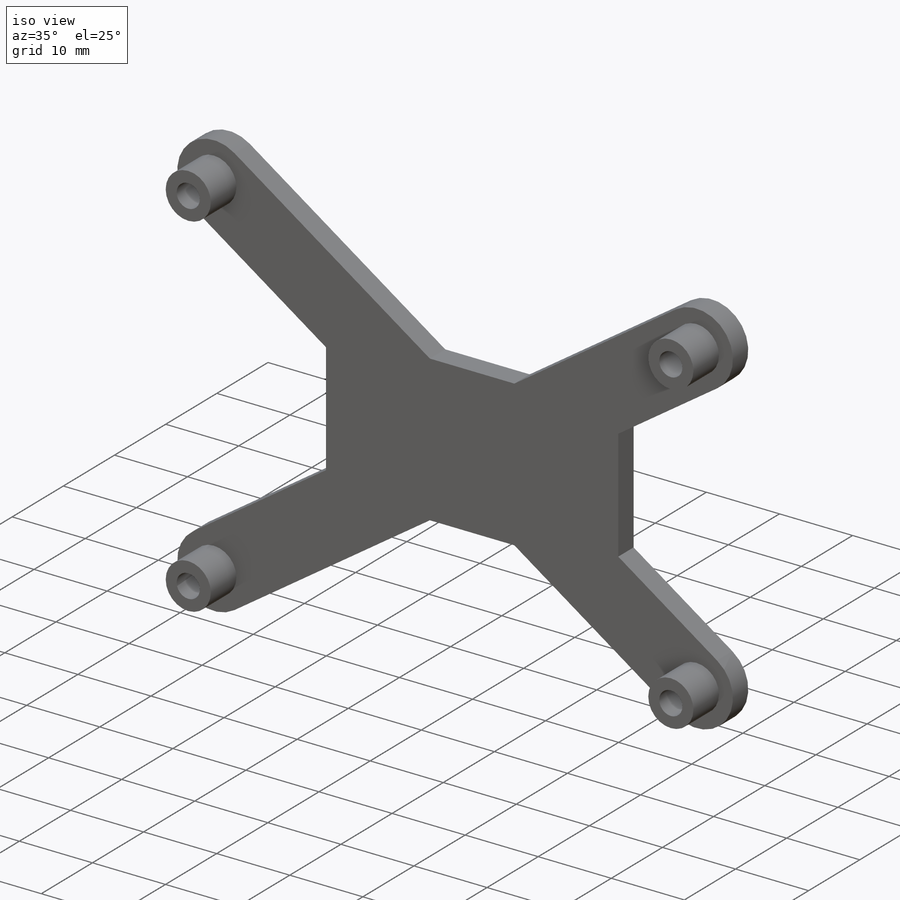
[diagram: iso view]
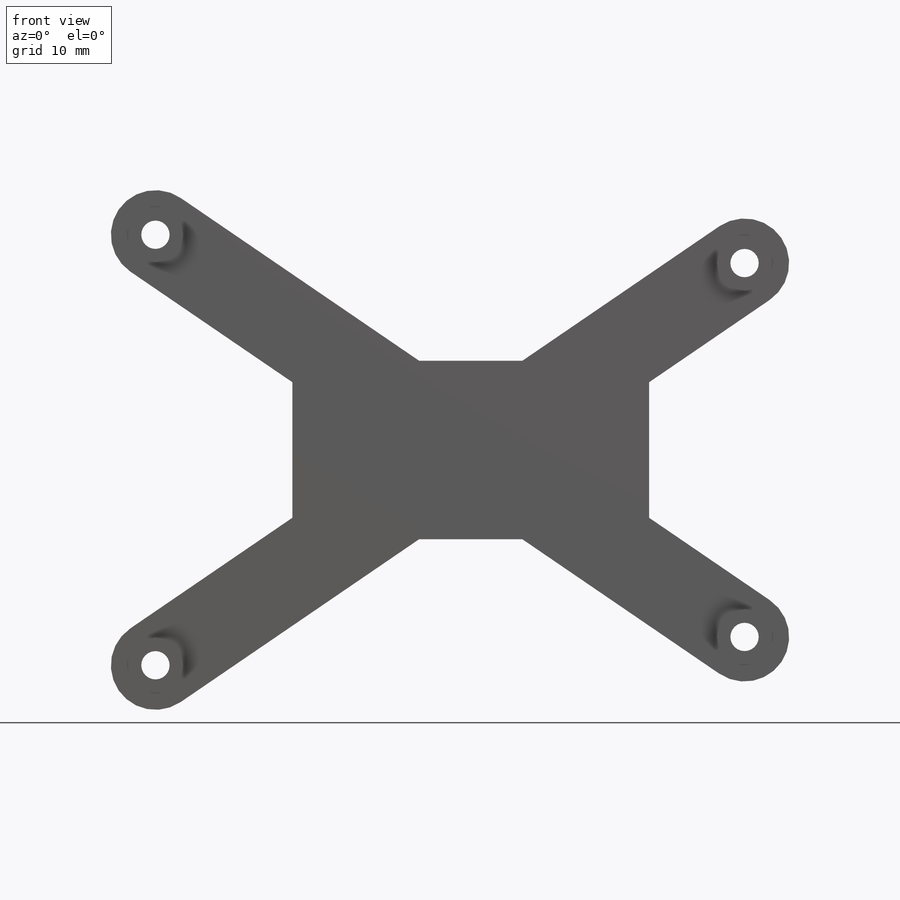
[diagram: front view]
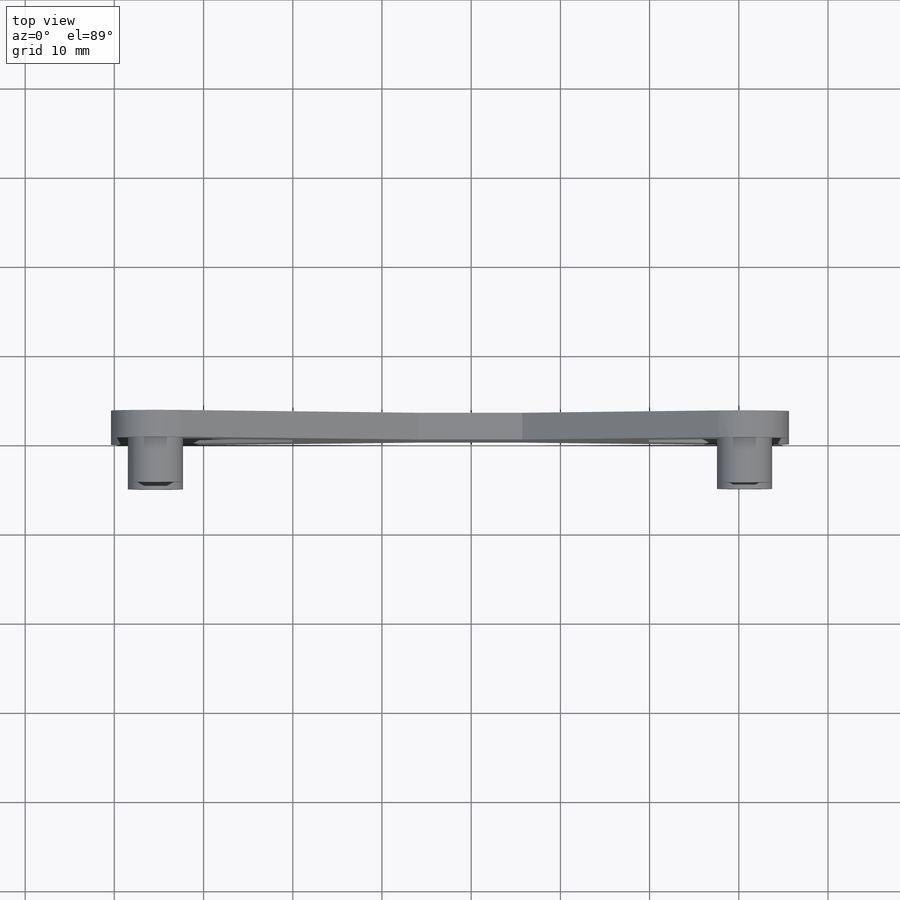
[diagram: top view]
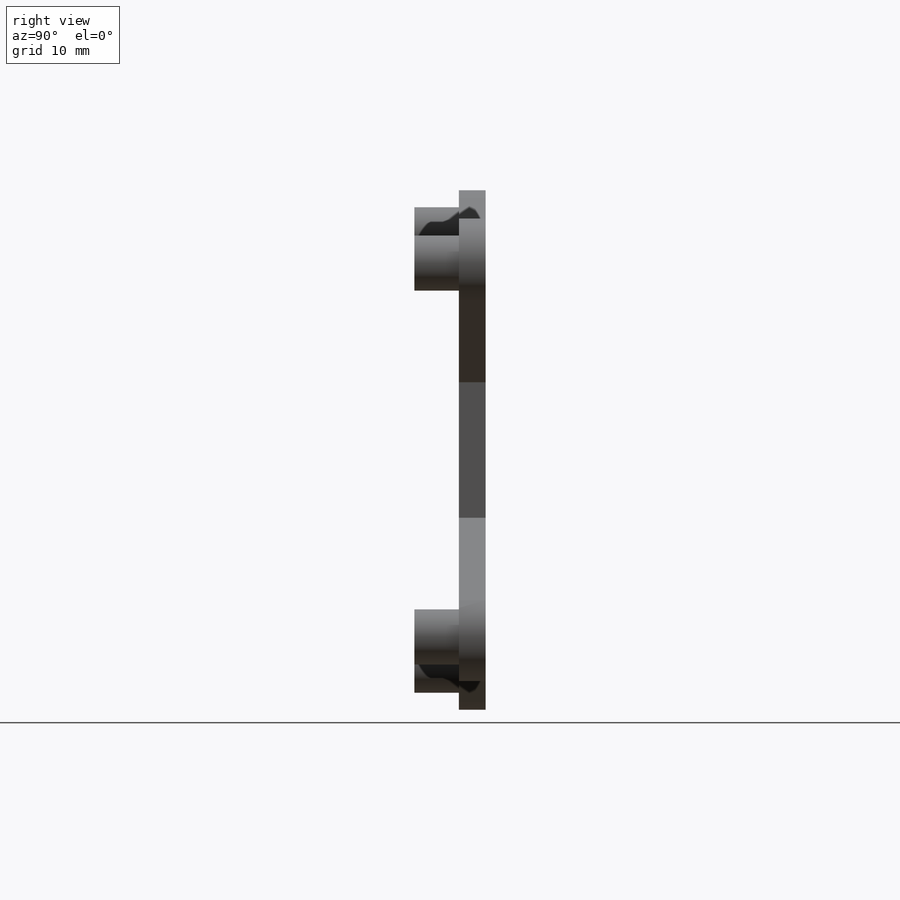
[diagram: right view]
SOLIDWORKS PART (.sldprt)
format: sldprt  version: not decoded by parser v0  size: 276,480 bytes
history: native  units: mm
features: sketch x4, extrude x2, material x1 (+13 scaffold rows collapsed)
feature tree (20):
  scaffold x13  (default folders/planes/origin — collapsed)
  material  "Material <not specified>"
  sketch  "Sketch3"  dims[D1=0.0mm]
  sketch  "seperate"  dims[c1.D1=~12.724811mm c1.D2=12.7127mm c1.D3=67.31mm c2.D1=10.0mm c2.D2=10.0mm c2.D3=10.0mm c2.D4=10.0mm c2.D5=20.0mm c2.D6=20.0mm c2.D7=20.0mm c2.D8=20.0mm c3.D3=0.5mm c3.D4=0.5mm]
  sketch  "combination"  dims[D1=3.175mm]
  sketch  "Sketch4"  dims[D1=1.5mm]
  extrude  "Boss-Extrude1"  Depth=5mm
  extrude  "Boss-Extrude2"  Depth=3mm
decode coverage: 6 of 6 modeling features carry decoded parameters
note: ~ marks probable driven/reference dimensions
note: suppression state not decoded; provenance and decode notes live in map.json
